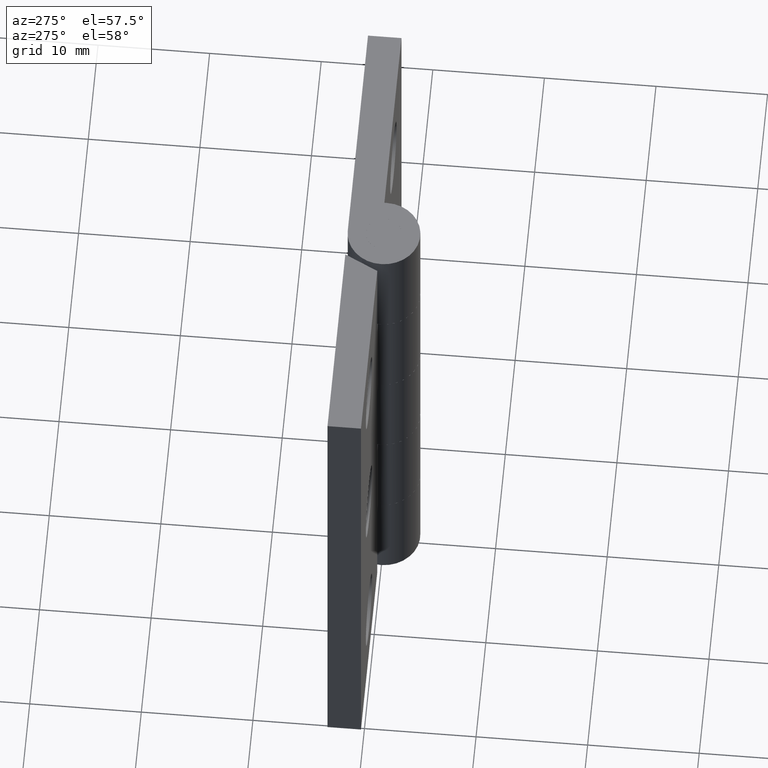
[diagram: clean part render]
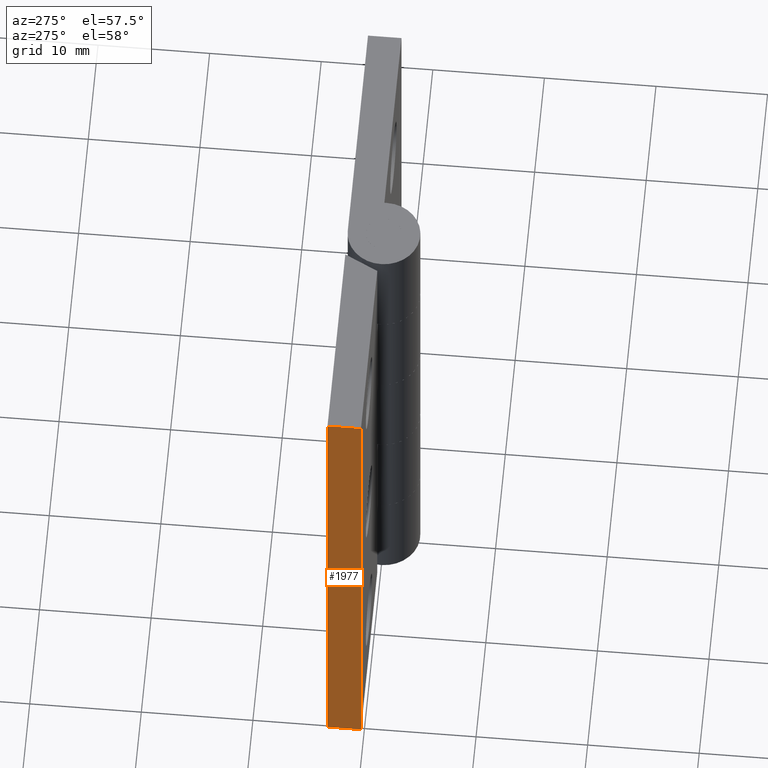
[diagram: same view with one face highlighted and labeled with its STEP entity id]
A machine part, auxiliary view. The second image highlights one B-rep face of the part: STEP entity #1977.
In plain terms, the highlighted face is a freeform B-spline surface patch.
Its self-contained STEP definition (entity closure, byte-faithful):
#1527=CARTESIAN_POINT('',(-20.749991999999899,3.250002000000000,0.0));
#1528=VERTEX_POINT('',#1527);
#1534=CARTESIAN_POINT('',(-20.749991999999899,3.250002000000000,50.0));
#1535=VERTEX_POINT('',#1534);
#1536=CARTESIAN_POINT('',(-20.749991999999899,3.250002000000000,0.0));
#1537=CARTESIAN_POINT('',(-20.749991999999899,3.250002000000000,50.0));
#1538=QUASI_UNIFORM_CURVE('',1,(#1536,#1537),.UNSPECIFIED.,.F.,.U.);
#1539=EDGE_CURVE('',#1528,#1535,#1538,.T.);
#1950=CARTESIAN_POINT('',(-20.749991999999899,0.100152005814582,52.497499903090286));
#1951=CARTESIAN_POINT('',(-20.749991999999899,0.100152005814582,-2.497501244194806));
#1952=CARTESIAN_POINT('',(-20.749991999999899,3.399852074651689,52.497499903090301));
#1953=CARTESIAN_POINT('',(-20.749991999999899,3.399852074651689,-2.497501244194806));
#1954=B_SPLINE_SURFACE_WITH_KNOTS('',1,1,((#1950,#1952),(#1951,#1953)),.UNSPECIFIED.,.F.,.F.,.U.,(2,2),(2,2),(0.0,54.995001147285109),(0.0,3.299700068837106),.UNSPECIFIED.);
#1955=CARTESIAN_POINT('',(-20.749991999999899,0.250002000000000,50.0));
#1956=VERTEX_POINT('',#1955);
#1957=CARTESIAN_POINT('',(-20.749991999999899,0.250002000000000,50.0));
#1958=CARTESIAN_POINT('',(-20.749991999999899,3.250002000000000,50.0));
#1959=QUASI_UNIFORM_CURVE('',1,(#1957,#1958),.UNSPECIFIED.,.F.,.U.);
#1960=EDGE_CURVE('',#1956,#1535,#1959,.T.);
#1961=ORIENTED_EDGE('',*,*,#1960,.T.);
#1962=ORIENTED_EDGE('',*,*,#1539,.F.);
#1963=CARTESIAN_POINT('',(-20.749991999999899,0.250002000000000,0.0));
#1964=VERTEX_POINT('',#1963);
#1965=CARTESIAN_POINT('',(-20.749991999999899,0.250002000000000,0.0));
#1966=CARTESIAN_POINT('',(-20.749991999999899,3.250002000000000,0.0));
#1967=QUASI_UNIFORM_CURVE('',1,(#1965,#1966),.UNSPECIFIED.,.F.,.U.);
#1968=EDGE_CURVE('',#1964,#1528,#1967,.T.);
#1969=ORIENTED_EDGE('',*,*,#1968,.F.);
#1970=CARTESIAN_POINT('',(-20.749991999999899,0.250002000000000,0.0));
#1971=CARTESIAN_POINT('',(-20.749991999999899,0.250002000000000,50.0));
#1972=QUASI_UNIFORM_CURVE('',1,(#1970,#1971),.UNSPECIFIED.,.F.,.U.);
#1973=EDGE_CURVE('',#1964,#1956,#1972,.T.);
#1974=ORIENTED_EDGE('',*,*,#1973,.T.);
#1975=EDGE_LOOP('',(#1961,#1962,#1969,#1974));
#1976=FACE_OUTER_BOUND('',#1975,.T.);
#1977=ADVANCED_FACE('',(#1976),#1954,.F.);